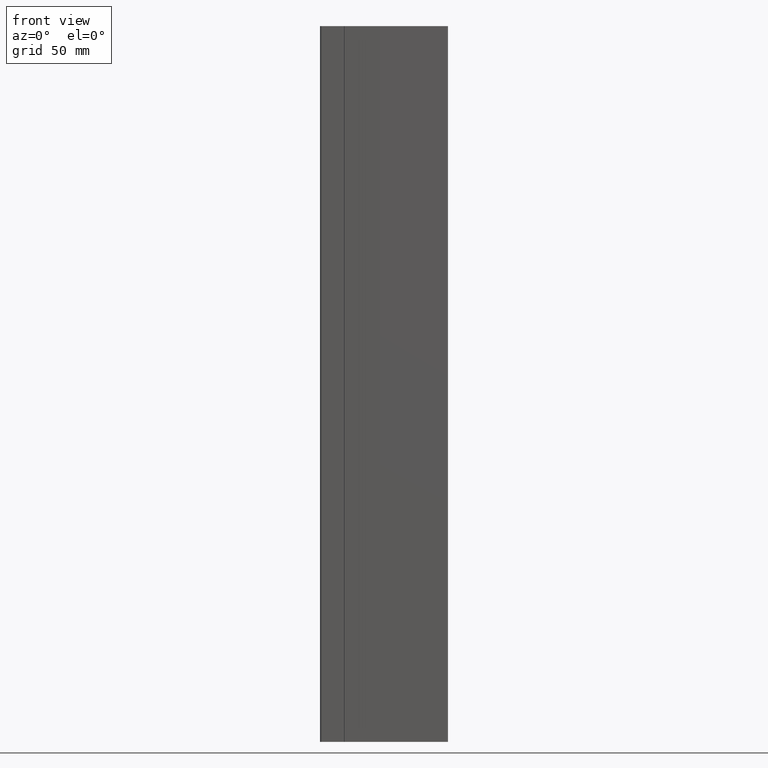
[diagram: clean part render]
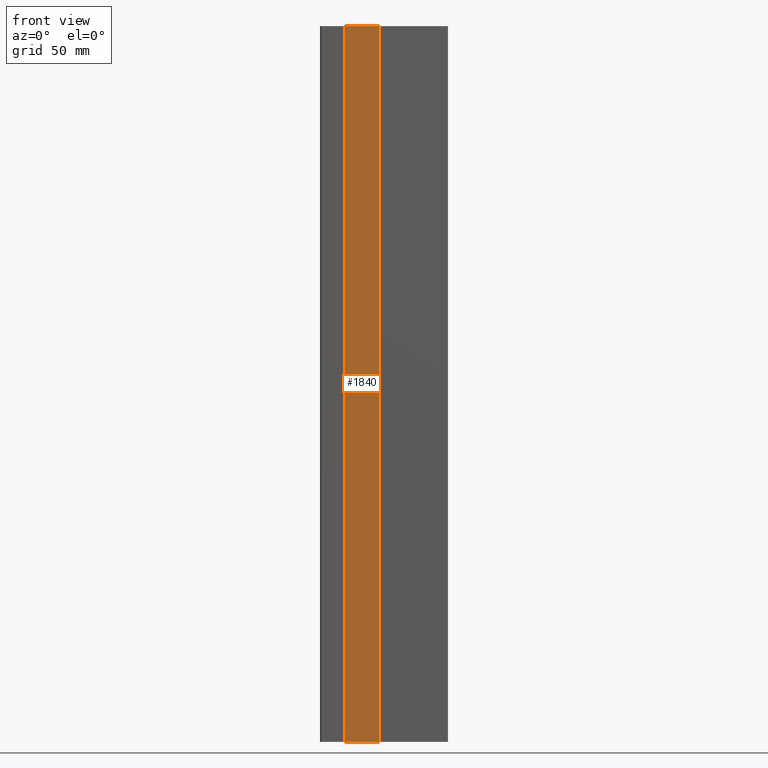
[diagram: same view with one face highlighted and labeled with its STEP entity id]
A machine part, front view. The second image highlights one B-rep face of the part: STEP entity #1840.
In plain terms, the highlighted planar face has unit normal (0.016, 0.9999, -0).
Its self-contained STEP definition (entity closure, byte-faithful):
#23 = CARTESIAN_POINT ( 'NONE',  ( -14.78087924239067300, -16.26391553212179300, -150.0009999999999800 ) ) ;
#35 = FACE_OUTER_BOUND ( 'NONE', #1665, .T. ) ;
#133 = VERTEX_POINT ( 'NONE', #424 ) ;
#217 = VERTEX_POINT ( 'NONE', #457 ) ;
#290 = ORIENTED_EDGE ( 'NONE', *, *, #1861, .T. ) ;
#317 = EDGE_CURVE ( 'NONE', #133, #217, #465, .T. ) ;
#345 = VECTOR ( 'NONE', #669, 1000.000000000000100 ) ;
#360 = ORIENTED_EDGE ( 'NONE', *, *, #317, .F. ) ;
#399 = LINE ( 'NONE', #1790, #767 ) ;
#424 = CARTESIAN_POINT ( 'NONE',  ( -14.78087924239067900, -16.26391553212174700, -150.0000000000000000 ) ) ;
#457 = CARTESIAN_POINT ( 'NONE',  ( -14.78087924239067300, -16.26391553212179300, 150.0000000000000000 ) ) ;
#465 = LINE ( 'NONE', #23, #659 ) ;
#529 = LINE ( 'NONE', #1808, #1090 ) ;
#659 = VECTOR ( 'NONE', #1902, 1000.000000000000000 ) ;
#669 = DIRECTION ( 'NONE',  ( 0.9998720245707583000, -0.01599795239313189100, 0.0000000000000000000 ) ) ;
#685 = CARTESIAN_POINT ( 'NONE',  ( -24.22570238034338500, -16.11279836191450700, -150.0000000000000000 ) ) ;
#713 = DIRECTION ( 'NONE',  ( -0.9998720245707583000, 0.01599795239313189100, 0.0000000000000000000 ) ) ;
#714 = DIRECTION ( 'NONE',  ( 0.01599795239313189100, 0.9998720245707583000, -0.0000000000000000000 ) ) ;
#717 = PLANE ( 'NONE',  #1603 ) ;
#753 = CARTESIAN_POINT ( 'NONE',  ( -24.22570238034338500, -16.11279836191450700, 150.0000000000000000 ) ) ;
#767 = VECTOR ( 'NONE', #1783, 1000.000000000000000 ) ;
#950 = ORIENTED_EDGE ( 'NONE', *, *, #992, .F. ) ;
#968 = EDGE_CURVE ( 'NONE', #217, #1533, #529, .T. ) ;
#992 = EDGE_CURVE ( 'NONE', #1533, #1192, #399, .T. ) ;
#1090 = VECTOR ( 'NONE', #1820, 1000.000000000000100 ) ;
#1098 = CARTESIAN_POINT ( 'NONE',  ( 0.0000000000000000000, -16.50040959999999400, 150.0000000000000000 ) ) ;
#1192 = VERTEX_POINT ( 'NONE', #1447 ) ;
#1447 = CARTESIAN_POINT ( 'NONE',  ( 0.0000000000000000000, -16.50040959999999400, -150.0000000000000000 ) ) ;
#1533 = VERTEX_POINT ( 'NONE', #1098 ) ;
#1603 = AXIS2_PLACEMENT_3D ( 'NONE', #753, #714, #713 ) ;
#1664 = LINE ( 'NONE', #685, #345 ) ;
#1665 = EDGE_LOOP ( 'NONE', ( #1772, #360, #290, #950 ) ) ;
#1772 = ORIENTED_EDGE ( 'NONE', *, *, #968, .F. ) ;
#1783 = DIRECTION ( 'NONE',  ( -0.0000000000000000000, -0.0000000000000000000, -1.000000000000000000 ) ) ;
#1790 = CARTESIAN_POINT ( 'NONE',  ( 0.0000000000000000000, -16.50040959999999400, 150.0000000000000000 ) ) ;
#1808 = CARTESIAN_POINT ( 'NONE',  ( -24.22570238034338500, -16.11279836191450700, 150.0000000000000000 ) ) ;
#1820 = DIRECTION ( 'NONE',  ( 0.9998720245707583000, -0.01599795239313189100, 0.0000000000000000000 ) ) ;
#1840 = ADVANCED_FACE ( 'NONE', ( #35 ), #717, .F. ) ;
#1861 = EDGE_CURVE ( 'NONE', #133, #1192, #1664, .T. ) ;
#1902 = DIRECTION ( 'NONE',  ( -0.0000000000000000000, -0.0000000000000000000, 1.000000000000000000 ) ) ;